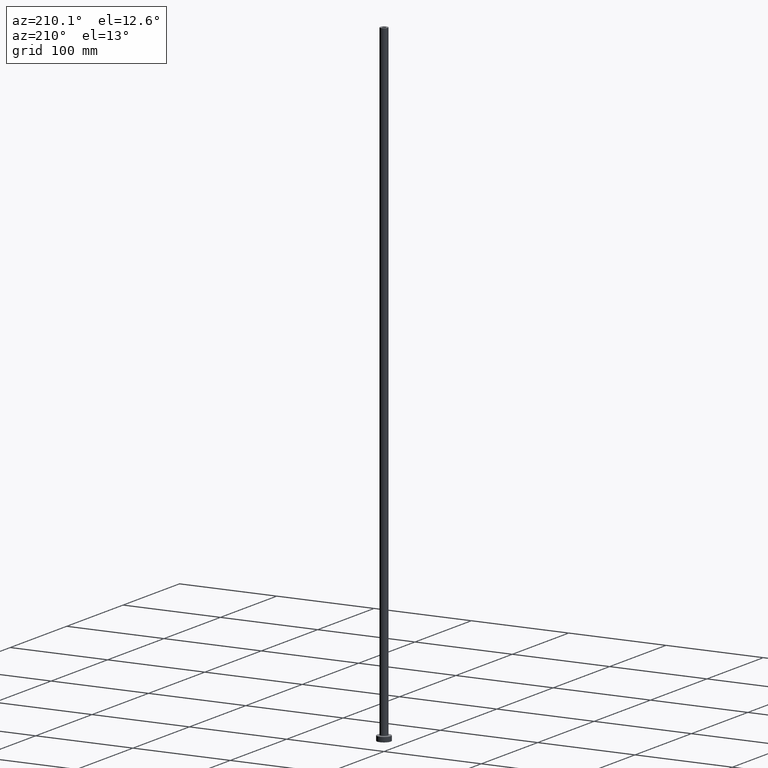
[diagram: clean part render]
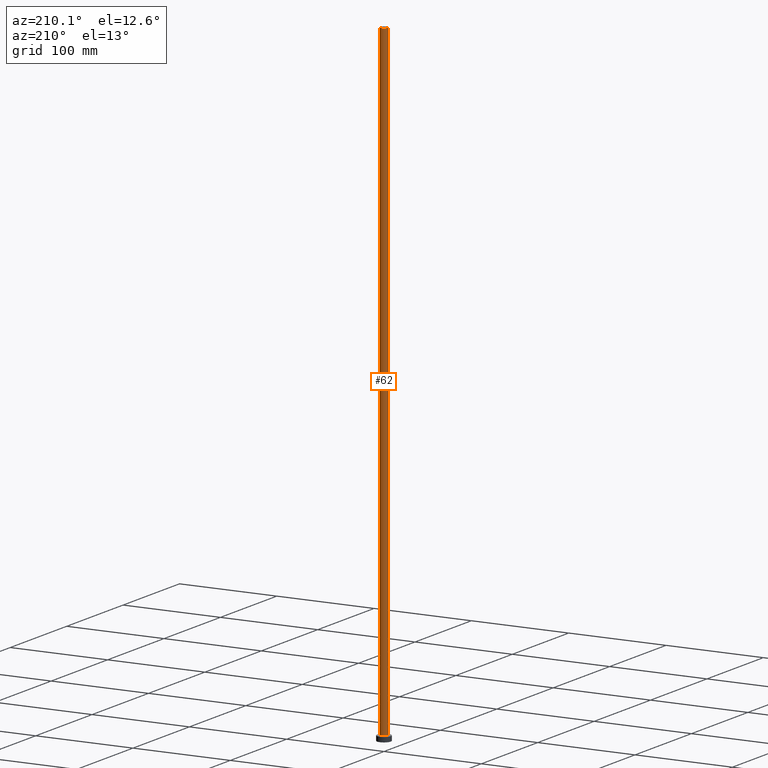
[diagram: same view with one face highlighted and labeled with its STEP entity id]
A machine part, auxiliary view. The second image highlights one B-rep face of the part: STEP entity #62.
In plain terms, the highlighted cylindrical surface (edge-blend (fillet) strip) has radius 4 mm, axis along (-0, -0, -1).
Its self-contained STEP definition (entity closure, byte-faithful):
#1 = DIRECTION ( 'NONE',  ( -1.000000000000000000, 0.000000000000000000, 0.000000000000000000 ) ) ;
#3 = EDGE_CURVE ( 'NONE', #428, #133, #59, .T. ) ;
#5 = CARTESIAN_POINT ( 'NONE',  ( 0.000000000000000000, 0.000000000000000000, 650.0000000000000000 ) ) ;
#17 = CIRCLE ( 'NONE', #146, 4.000000000000000000 ) ;
#31 = ORIENTED_EDGE ( 'NONE', *, *, #128, .T. ) ;
#34 = ORIENTED_EDGE ( 'NONE', *, *, #3, .F. ) ;
#59 = LINE ( 'NONE', #263, #432 ) ;
#62 = ADVANCED_FACE ( 'NONE', ( #285 ), #207, .T. ) ;
#98 = ORIENTED_EDGE ( 'NONE', *, *, #257, .F. ) ;
#104 = DIRECTION ( 'NONE',  ( 1.000000000000000000, 0.000000000000000000, 0.000000000000000000 ) ) ;
#105 = DIRECTION ( 'NONE',  ( 1.000000000000000000, 0.000000000000000000, 0.000000000000000000 ) ) ;
#114 = AXIS2_PLACEMENT_3D ( 'NONE', #430, #261, #105 ) ;
#122 = LINE ( 'NONE', #343, #448 ) ;
#128 = EDGE_CURVE ( 'NONE', #237, #355, #122, .T. ) ;
#133 = VERTEX_POINT ( 'NONE', #369 ) ;
#139 = CARTESIAN_POINT ( 'NONE',  ( 0.000000000000000000, 0.000000000000000000, 5.499999999999949374 ) ) ;
#142 = AXIS2_PLACEMENT_3D ( 'NONE', #5, #354, #1 ) ;
#146 = AXIS2_PLACEMENT_3D ( 'NONE', #139, #287, #104 ) ;
#172 = EDGE_LOOP ( 'NONE', ( #98, #31, #199, #34 ) ) ;
#187 = DIRECTION ( 'NONE',  ( -0.000000000000000000, -0.000000000000000000, -1.000000000000000000 ) ) ;
#199 = ORIENTED_EDGE ( 'NONE', *, *, #344, .T. ) ;
#203 = CARTESIAN_POINT ( 'NONE',  ( 4.000000000000000000, 4.898587196589411843E-16, 650.0000000000000000 ) ) ;
#207 = CYLINDRICAL_SURFACE ( 'NONE', #142, 4.000000000000000000 ) ;
#231 = CIRCLE ( 'NONE', #114, 4.000000000000000000 ) ;
#233 = DIRECTION ( 'NONE',  ( -0.000000000000000000, -0.000000000000000000, -1.000000000000000000 ) ) ;
#237 = VERTEX_POINT ( 'NONE', #203 ) ;
#241 = CARTESIAN_POINT ( 'NONE',  ( 4.000000000000000000, 4.898587196589411843E-16, 5.499999999999949374 ) ) ;
#257 = EDGE_CURVE ( 'NONE', #237, #428, #231, .T. ) ;
#261 = DIRECTION ( 'NONE',  ( 0.000000000000000000, 0.000000000000000000, 1.000000000000000000 ) ) ;
#263 = CARTESIAN_POINT ( 'NONE',  ( -4.000000000000000000, 0.000000000000000000, 650.0000000000000000 ) ) ;
#285 = FACE_OUTER_BOUND ( 'NONE', #172, .T. ) ;
#287 = DIRECTION ( 'NONE',  ( 0.000000000000000000, 0.000000000000000000, 1.000000000000000000 ) ) ;
#333 = CARTESIAN_POINT ( 'NONE',  ( -4.000000000000000000, 0.000000000000000000, 650.0000000000000000 ) ) ;
#343 = CARTESIAN_POINT ( 'NONE',  ( 4.000000000000000000, 4.898587196589411843E-16, 650.0000000000000000 ) ) ;
#344 = EDGE_CURVE ( 'NONE', #355, #133, #17, .T. ) ;
#354 = DIRECTION ( 'NONE',  ( -0.000000000000000000, -0.000000000000000000, -1.000000000000000000 ) ) ;
#355 = VERTEX_POINT ( 'NONE', #241 ) ;
#369 = CARTESIAN_POINT ( 'NONE',  ( -4.000000000000000000, 0.000000000000000000, 5.499999999999949374 ) ) ;
#428 = VERTEX_POINT ( 'NONE', #333 ) ;
#430 = CARTESIAN_POINT ( 'NONE',  ( 0.000000000000000000, 0.000000000000000000, 650.0000000000000000 ) ) ;
#432 = VECTOR ( 'NONE', #233, 1000.000000000000000 ) ;
#448 = VECTOR ( 'NONE', #187, 1000.000000000000000 ) ;